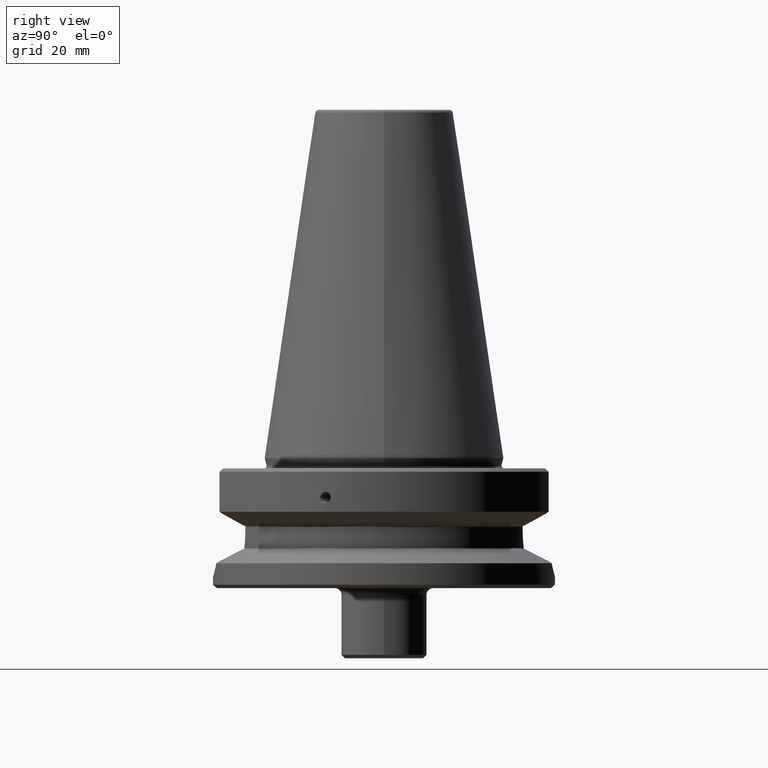
[diagram: clean part render]
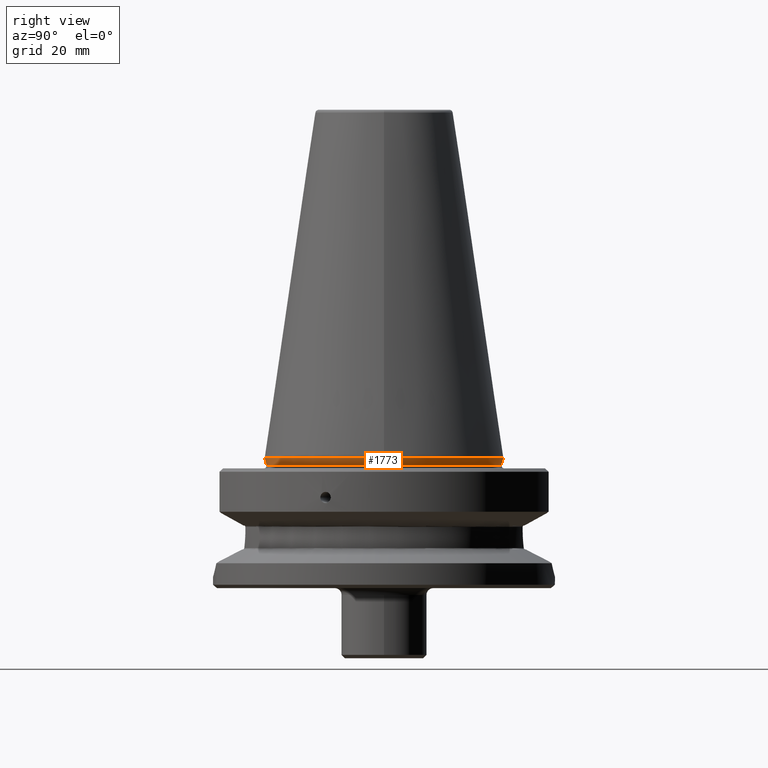
[diagram: same view with one face highlighted and labeled with its STEP entity id]
A machine part, right view. The second image highlights one B-rep face of the part: STEP entity #1773.
In plain terms, the highlighted conical surface has half-angle 15 deg.
Its self-contained STEP definition (entity closure, byte-faithful):
#176=CONICAL_SURFACE('',#1864,35.075,0.261799387799148);
#248=ORIENTED_EDGE('',*,*,#578,.T.);
#249=ORIENTED_EDGE('',*,*,#579,.F.);
#578=EDGE_CURVE('',#743,#743,#860,.T.);
#579=EDGE_CURVE('',#744,#744,#861,.T.);
#743=VERTEX_POINT('',#2434);
#744=VERTEX_POINT('',#2436);
#860=CIRCLE('',#1865,34.3909920599484);
#861=CIRCLE('',#1866,34.925);
#921=EDGE_LOOP('',(#248));
#922=EDGE_LOOP('',(#249));
#1047=FACE_BOUND('',#921,.T.);
#1048=FACE_BOUND('',#922,.T.);
#1773=ADVANCED_FACE('',(#1047,#1048),#176,.T.);
#1864=AXIS2_PLACEMENT_3D('',#2432,#2017,#2018);
#1865=AXIS2_PLACEMENT_3D('',#2433,#2019,#2020);
#1866=AXIS2_PLACEMENT_3D('',#2435,#2021,#2022);
#2017=DIRECTION('',(-1.25488262000243E-16,0.,1.));
#2018=DIRECTION('',(1.,0.,1.25488262000243E-16));
#2019=DIRECTION('',(-1.25488262000243E-16,0.,1.));
#2020=DIRECTION('',(1.,0.,1.25488262000243E-16));
#2021=DIRECTION('',(0.,0.,1.));
#2022=DIRECTION('',(1.,0.,0.));
#2432=CARTESIAN_POINT('',(-4.83880324143998E-15,0.,0.559807621135354));
#2433=CARTESIAN_POINT('',(-4.51846278132266E-15,0.,-1.99294476391799));
#2434=CARTESIAN_POINT('',(34.3909920599484,0.,-1.99294476391799));
#2435=CARTESIAN_POINT('',(0.,0.,0.));
#2436=CARTESIAN_POINT('',(34.925,0.,0.));